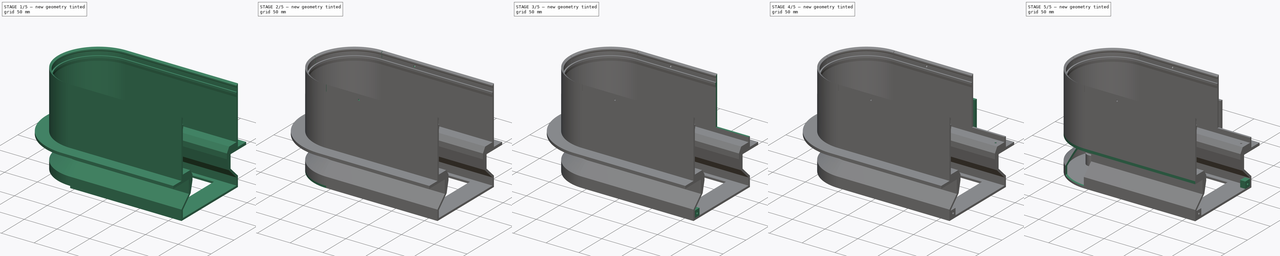
[diagram: build sequence overview — one tinted view per stage of 5, left to right]
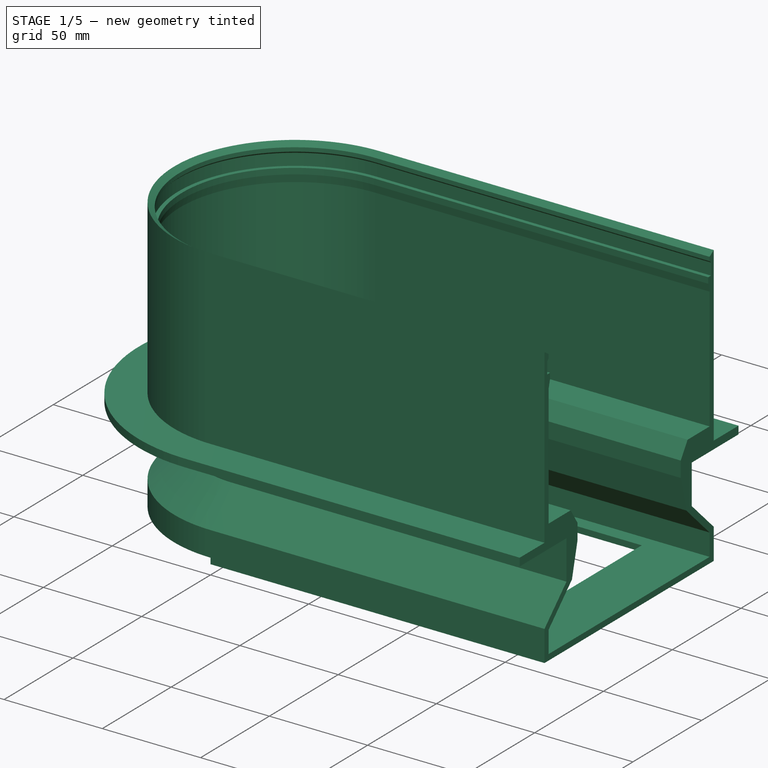
[diagram: stage 1 of 5 — iso view after this stage's code; geometry added in this stage tinted green]
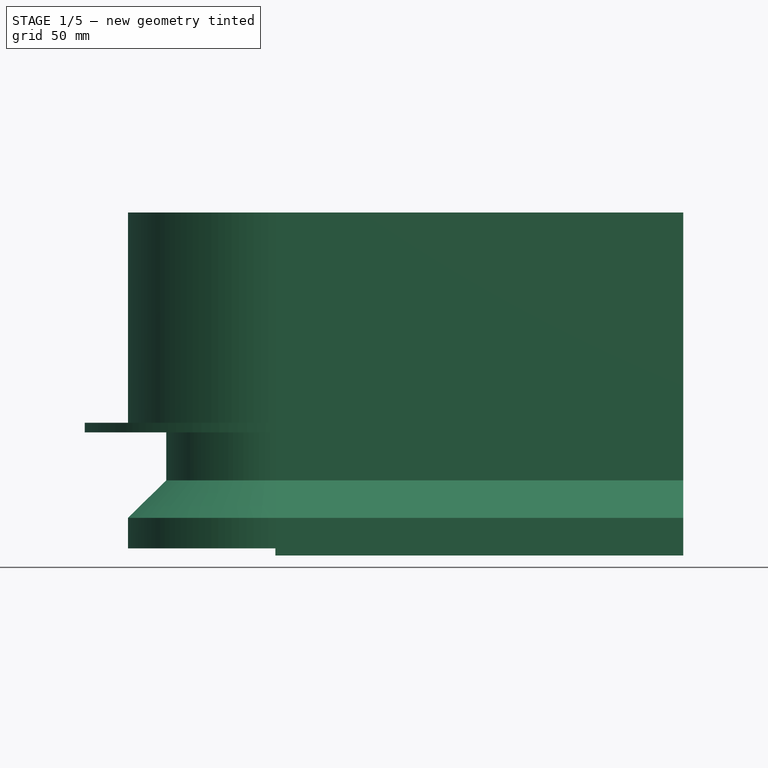
[diagram: stage 1 of 5 — front view after this stage's code; geometry added in this stage tinted green]
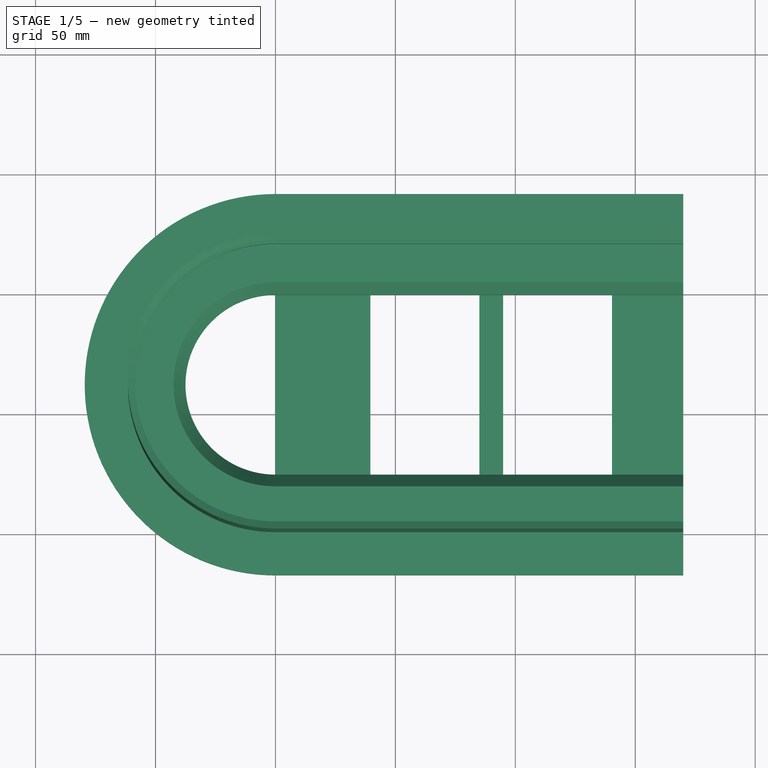
[diagram: stage 1 of 5 — top view after this stage's code; geometry added in this stage tinted green]
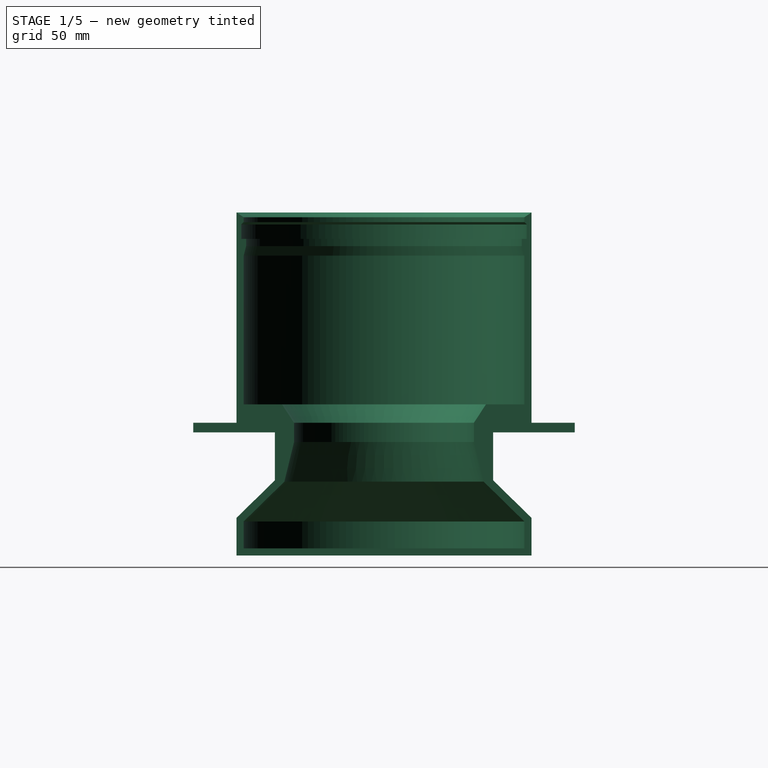
[diagram: stage 1 of 5 — right view after this stage's code; geometry added in this stage tinted green]
FCSTD DOCUMENT  (FreeCAD 1.0R39109 (Git))
Label: Base Layer - Power Side - Wall
License: All rights reserved
LicenseURL: http://en.wikipedia.org/wiki/All_rights_reserved
objects: Sketcher::SketchObject×19, PartDesign::Pocket×12, PartDesign::Pad×7, PartDesign::Plane×6, PartDesign::Mirrored×2, App::Link×1, PartDesign::ShapeBinder×1, PartDesign::Line×1, PartDesign::Revolution×1, App::Part×1, PartDesign::Body×1, Part::Scale×1
note: 112 computed .brp shape members not serialized (recipe doc carries the construction recipe); baked Part::Feature solids carry a one-line shape summary decoded from their .brp
EXTERNAL_REF file=../Master Document.FCStd obj=Spreadsheet

FEATURE [App::Link] Link  label="Monitor Chassis Parameters"
  LinkPlacement = pos=(0,-59,0) rot=(0,0,1;0rad)
  LinkedObject = -> <external ../Master Document.FCStd>#Spreadsheet
  Placement = pos=(0,-59,0) rot=(0,0,1;0rad)
FEATURE [Sketcher::SketchObject] Sketch
  ArcFitTolerance = 1e-06
  AttachmentSupport = -> [XY_Plane001]
  FullyConstrained = true
  MakeInternals = false
  MapMode = 5
  expr: Constraints[10] = <<Monitor Chassis Parameters>>.GSWallHalfLength
  expr: Constraints[28] = <<Monitor Chassis Parameters>>.GSBaseFloorBeamWidth
  expr: Constraints[29] = <<Monitor Chassis Parameters>>.GSBaseFloorBeamWidth
  expr: Constraints[31] = 3 * <<Monitor Chassis Parameters>>.GSBaseFloorBeamWidth
  expr: Constraints[32] = <<Monitor Chassis Parameters>>.GSBaseFloorBeamWidth
  expr: Constraints[33] = 4 * <<Monitor Chassis Parameters>>.GSBaseFloorBeamWidth
  expr: Constraints[34] = 0.5 * <<Monitor Chassis Parameters>>.GSWallHalfLength
  expr: Constraints[9] = <<Monitor Chassis Parameters>>.GSWallWidth
  sketch-geometry (12):
    g0: LineSegment StartX=0 StartY=0 StartZ=0 EndX=170 EndY=0 EndZ=0
    g1: LineSegment StartX=170 StartY=0 StartZ=0 EndX=170 EndY=123 EndZ=0
    g2: LineSegment StartX=170 StartY=123 StartZ=0 EndX=0 EndY=123 EndZ=0
    g3: LineSegment StartX=0 StartY=123 StartZ=0 EndX=0 EndY=0 EndZ=0
    g4: LineSegment StartX=39.6 StartY=113.1 StartZ=0 EndX=39.6 EndY=9.9 EndZ=0
    g5: LineSegment StartX=39.6 StartY=9.9 StartZ=0 EndX=85 EndY=9.9 EndZ=0
    g6: LineSegment StartX=85 StartY=9.9 StartZ=0 EndX=85 EndY=113.1 EndZ=0
    g7: LineSegment StartX=85 StartY=113.1 StartZ=0 EndX=39.6 EndY=113.1 EndZ=0
    g8: LineSegment StartX=94.9 StartY=113.1 StartZ=0 EndX=94.9 EndY=9.9 EndZ=0
    g9: LineSegment StartX=94.9 StartY=9.9 StartZ=0 EndX=140.3 EndY=9.9 EndZ=0
    g10: LineSegment StartX=140.3 StartY=9.9 StartZ=0 EndX=140.3 EndY=113.1 EndZ=0
    g11: LineSegment StartX=140.3 StartY=113.1 StartZ=0 EndX=94.9 EndY=113.1 EndZ=0
  constraints (35):
    c: Coincident(g0,g1)
    c: Coincident(g1,g2)
    c: Coincident(g2,g3)
    c: Coincident(g3,g0)
    c: Horizontal(g0)
    c: Horizontal(g2)
    c: Vertical(g1)
    c: Vertical(g3)
    c: Coincident(g0,g-1)
    c: DistanceY(g0,g2) = 123
    c: DistanceX(g1) = 170
    c: Coincident(g4,g5)
    c: Coincident(g5,g6)
    c: Coincident(g6,g7)
    c: Coincident(g7,g4)
    c: Vertical(g4)
    c: Vertical(g6)
    c: Horizontal(g5)
    c: Horizontal(g7)
    c: Coincident(g8,g9)
    c: Coincident(g9,g10)
    c: Coincident(g10,g11)
    c: Coincident(g11,g8)
    c: Vertical(g8)
    c: Vertical(g10)
    c: Horizontal(g9)
    c: Horizontal(g11)
    c: Horizontal(g8,g4)
    c: DistanceY(g0,g4) = 9.9
    c: DistanceY(g4,g2) = 9.9
    c: Horizontal(g4,g8)
    c: DistanceX(g9,g0) = 29.7
    c: DistanceX(g5,g8) = 9.9
    c: DistanceX(g0,g4) = 39.6
    c: DistanceX(g0,g5) = 85
FEATURE [PartDesign::Pad] Pad  label="Base Floor Pad"
  Direction = (0,0,1)
  Length = 3
  Length2 = 10
  Profile = -> Sketch
  ReferenceAxis = -> Sketch [N_Axis]
  Suppressed = false
  Type = 0
  expr: Length = <<Monitor Chassis Parameters>>.GSBaseBodyThickness
FEATURE [Sketcher::SketchObject] Sketch001  label="Side Wall Sketch"
  ArcFitTolerance = 0
  AttachmentSupport = -> [Pad]
  ExternalGeometry = -> [Pad]
  FullyConstrained = true
  MakeInternals = false
  MapMode = 5
  Placement = pos=(0,0,0) rot=(0.57735,-0.57735,-0.57735;2.0944rad)
  expr: Constraints[21] = 2
  expr: Constraints[22] = <<Monitor Chassis Parameters>>.GSCamWallClickIndent
  expr: Constraints[27] = <<Monitor Chassis Parameters>>.GSCamWallClickLength
  expr: Constraints[31] = <<Monitor Chassis Parameters>>.GSMonitorFloorOffsetFromBottom
  expr: Constraints[37] = <<Monitor Chassis Parameters>>.GSLEDLightWidth
  expr: Constraints[45] = <<Monitor Chassis Parameters>>.GSLEDLightOverhang
  expr: Constraints[48] = <<Monitor Chassis Parameters>>.GSThinWallThickness
  expr: Constraints[49] = <<Monitor Chassis Parameters>>.GSCamWallThickness
  expr: Constraints[4] = <<Monitor Chassis Parameters>>.GSCamWallThickness - 1
  expr: Constraints[50] = <<Monitor Chassis Parameters>>.GSBaseBodyThickness
  expr: Constraints[5] = <<Monitor Chassis Parameters>>.GSBottomWallHeight
  sketch-geometry (24):
    g0: LineSegment StartX=-3 StartY=139 StartZ=0 EndX=-2 EndY=138 EndZ=0
    g1: LineSegment StartX=-2 StartY=138 StartZ=0 EndX=-2 EndY=132 EndZ=0
    g2: LineSegment StartX=-2 StartY=132 StartZ=0 EndX=-4 EndY=132 EndZ=0
    g3: LineSegment StartX=-3 StartY=3 StartZ=0 EndX=0 EndY=3 EndZ=0
    g4: GeomPoint [constr] X=-3 Y=125 Z=0
    g5: GeomPoint [constr] X=-4 Y=129 Z=0
    g6: LineSegment StartX=-4 StartY=132 StartZ=0 EndX=-4 EndY=129 EndZ=0
    g7: LineSegment StartX=-4 StartY=129 StartZ=0 EndX=-3 EndY=125 EndZ=0
    g8: LineSegment StartX=-2e-16 StartY=143 StartZ=0 EndX=-3 EndY=141 EndZ=0
    g9: LineSegment StartX=-3 StartY=139 StartZ=0 EndX=-3 EndY=141 EndZ=0
    g10: LineSegment StartX=-3 StartY=125 StartZ=0 EndX=-3 EndY=63 EndZ=0
    g11: LineSegment StartX=-3 StartY=14.2 StartZ=0 EndX=-3 EndY=3 EndZ=0
    g12: LineSegment StartX=-3 StartY=63 StartZ=0 EndX=-19 EndY=63 EndZ=0
    g13: LineSegment StartX=-19.9668 StartY=30.8154 StartZ=0 EndX=-3 EndY=14.2 EndZ=0
    g14: LineSegment StartX=0 StartY=3 StartZ=0 EndX=0 EndY=15.7 EndZ=0
    g15: LineSegment StartX=18 StartY=51.33 StartZ=0 EndX=-16 EndY=51.33 EndZ=0
    g16: LineSegment StartX=-16 StartY=51.33 StartZ=0 EndX=-16 EndY=31.33 EndZ=0
    g17: LineSegment StartX=-16 StartY=31.33 StartZ=0 EndX=0 EndY=15.7 EndZ=0
    g18: LineSegment StartX=-2e-16 StartY=55.33 StartZ=0 EndX=-2e-16 EndY=143 EndZ=0
    g19: LineSegment StartX=18 StartY=51.33 StartZ=0 EndX=18 EndY=55.33 EndZ=0
    g20: LineSegment StartX=18 StartY=55.33 StartZ=0 EndX=0 EndY=55.33 EndZ=0
    g21: LineSegment StartX=-19 StartY=63 StartZ=0 EndX=-24 EndY=55.33 EndZ=0
    g22: LineSegment StartX=-24 StartY=55.33 StartZ=0 EndX=-24 EndY=47.33 EndZ=0
    g23: LineSegment StartX=-24 StartY=47.33 StartZ=0 EndX=-19.9668 EndY=30.8154 EndZ=0
  constraints (67):
    c: Coincident(g0,g1)
    c: Coincident(g1,g2)
    c: Coincident(g3,g14)
    c: Horizontal(g14,g3)
    c: DistanceX(g3,g14) = 3
    c: DistanceY(g14,g18) = 140
    c: Vertical(g0,g1)
    c: Coincident(g6,g2)
    c: Coincident(g6,g5)
    c: Coincident(g10,g4)
    c: Coincident(g11,g3)
    c: Coincident(g7,g6)
    c: Coincident(g7,g10)
    c: DistanceY(g10,g6) = 4
    c: DistanceX(g6,g10) = 1
    c: Vertical(g6)
    c: Coincident(g8,g18)
    c: Coincident(g9,g0)
    c: Coincident(g9,g8)
    c: DistanceY(g6,g2) = 3
    c: Horizontal(g2,g1)
    c: DistanceX(g2,g1) = 2
    c: DistanceX(g0,g0) = 1
    c: DistanceY(g0,g0) = 1
    c: Vertical(g9)
    c: DistanceY(g8,g18) = 2
    c: DistanceY(g0,g8) = 2
    c: DistanceY(g1,g0) = 6
    c: Vertical(g11)
    c: Vertical(g11,g10)
    c: Coincident(g13,g11)
    c: DistanceY(g3,g10) = 60
    c: Vertical(g14)
    c: Coincident(g16,g15)
    c: Vertical(g16)
    c: Coincident(g17,g16)
    c: Coincident(g17,g14)
    c: DistanceY(g16,g15) = 20
    c: Horizontal(g12,g10)
    c: Vertical(g19)
    c: Coincident(g12,g10)
    c: Coincident(g19,g20)
    c: Coincident(g18,g20)
    c: Coincident(g15,g19)
    c: Horizontal(g15,g15)
    c: DistanceX(g18,g19) = 18
    c: Vertical(g18,g8)
    c: Horizontal(g18,g19)
    c: DistanceX(g10,g18) = 3
    c: DistanceY(g15,g19) = 4
    c: DistanceX(g12,g15) = 3
    c: Distance(g13,g16) = 4
    c: DistanceY(g11,g14) = 1.5
    c: DistanceX(g15,g15) = 34
    c: DistanceY(g14,g16) = 15.63
    c: DistanceY(g3,g14) = 12.7
    c: Vertical(g10)
    c: Coincident(g3,g-4)
    c: Coincident(g21,g12)
    c: Coincident(g22,g21)
    c: Vertical(g22)
    c: Coincident(g23,g22)
    c: Coincident(g23,g13)
    c: DistanceX(g21,g12) = 5
    c: Horizontal(g21,g18)
    c: DistanceY(g22,g21) = 8
    c: Distance(g22,g13) = 17
FEATURE [PartDesign::Pad] Pad001  label="Side Wall Pad"
  BaseFeature = -> Pad
  Direction = (-1,0,0)
  Length = 170
  Length2 = 10
  Profile = -> Sketch001
  ReferenceAxis = -> Sketch001 [N_Axis]
  Reversed = true
  Suppressed = false
  Type = 0
  expr: Length = <<Monitor Chassis Parameters>>.GSWallHalfLength
FEATURE [PartDesign::ShapeBinder] CopyYZ_Plane
  Placement = pos=(0,0,0) rot=(0.57735,0.57735,0.57735;2.0944rad)
  TraceSupport = false
FEATURE [PartDesign::Line] DatumLine
  AttacherType = Attacher::AttachEngineLine
  AttachmentOffset = pos=(0,0,61.5) rot=(0,1,0;1.5708rad)
  AttachmentSupport = -> [CopyYZ_Plane]
  Length = 20
  MapMode = 16
  Placement = pos=(0,61.5,0) rot=(0,0,1;4.71239rad)
  ResizeMode = 0
  expr: .AttachmentOffset.Base.z = 0.5 * <<Monitor Chassis Parameters>>.GSWallWidth
FEATURE [PartDesign::Revolution] Revolution  label="Sidel Wall Revolution"
  Angle = 180
  Angle2 = 60
  Axis = (0,0,1)
  Base = (0,61.5,0)
  BaseFeature = -> Pad001
  Profile = -> Sketch001
  ReferenceAxis = -> DatumLine
  Reversed = true
  Suppressed = false
  Type = 0
FEATURE [PartDesign::Plane] DatumPlane
  AttachmentSupport = -> [Origin]
  Length = 60
  ResizeMode = 0
  Width = 60
FEATURE [PartDesign::Plane] DatumPlane001
  AttachmentOffset = pos=(0,0,-61.5) rot=(0,0,1;0rad)
  AttachmentSupport = -> [XZ_Plane001]
  Length = 309.48
  MapMode = 5
  Placement = pos=(0,61.5,-1.37e-14) rot=(1,0,0;1.5708rad)
  ResizeMode = 0
  Width = 210.367
  expr: .AttachmentOffset.Base.z = -0.5 * <<Monitor Chassis Parameters>>.GSWallWidth
FEATURE [PartDesign::Mirrored] Mirrored  label="Side Wall Mirror"
  BaseFeature = -> Revolution
  MirrorPlane = -> DatumPlane001
  Originals = -> [Pad001]
  Suppressed = false
  TransformMode = 0
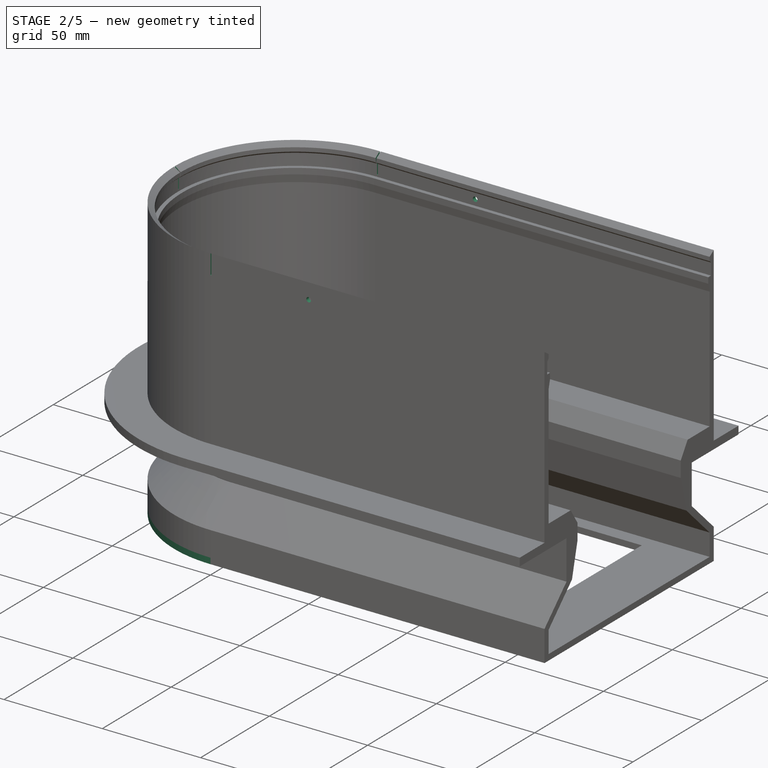
[diagram: stage 2 of 5 — iso view after this stage's code; geometry added in this stage tinted green]
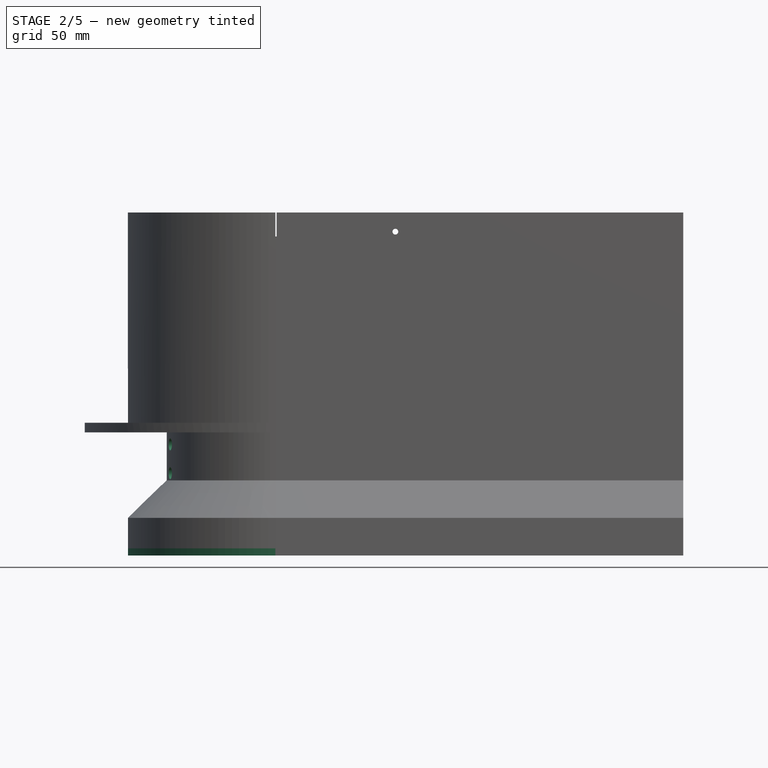
[diagram: stage 2 of 5 — front view after this stage's code; geometry added in this stage tinted green]
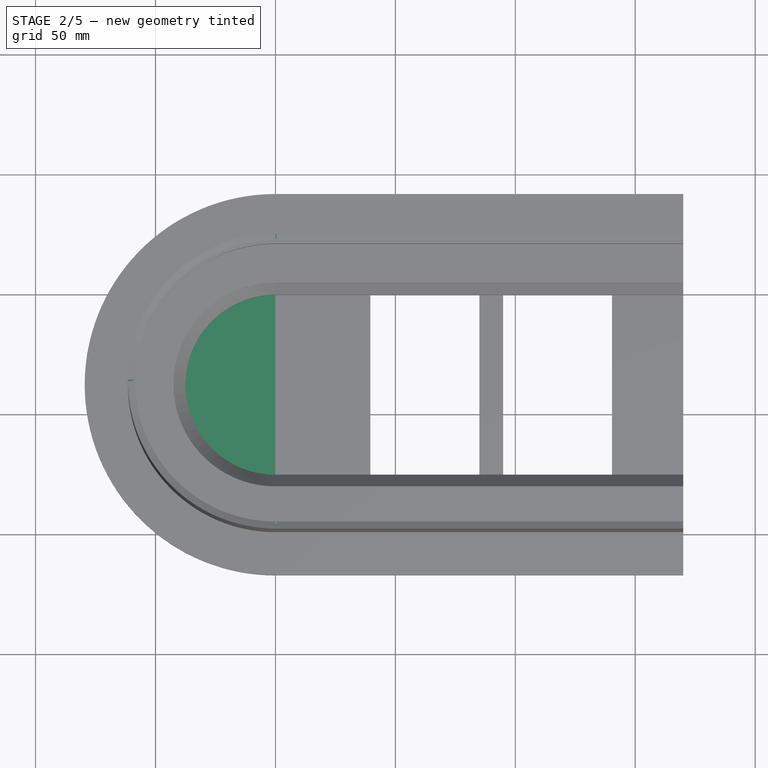
[diagram: stage 2 of 5 — top view after this stage's code; geometry added in this stage tinted green]
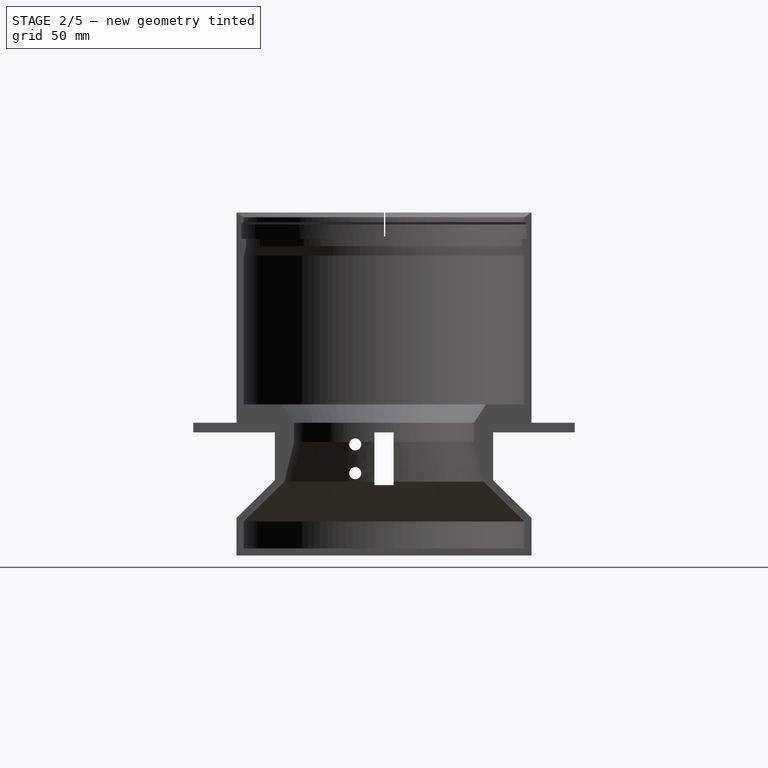
[diagram: stage 2 of 5 — right view after this stage's code; geometry added in this stage tinted green]
FEATURE [Sketcher::SketchObject] Sketch002
  ArcFitTolerance = 1e-06
  AttachmentSupport = -> [XY_Plane001]
  FullyConstrained = true
  MakeInternals = false
  MapMode = 5
  expr: Constraints[1] = <<Monitor Chassis Parameters>>.GSWallWidth
  sketch-geometry (2):
    g0: ArcOfCircle CenterX=-4.52e-14 CenterY=61.5 CenterZ=0 NormalX=0 NormalY=0 NormalZ=1 AngleXU=0 Radius=61.5 StartAngle=1.5708 EndAngle=4.71239
    g1: LineSegment StartX=4.092e-13 StartY=123 StartZ=0 EndX=-4.52e-14 EndY=0 EndZ=0
  constraints (6):
    c: PointOnObject(g0,g-2)
    c: DistanceY(g0,g0) = 123
    c: Coincident(g1,g0)
    c: Coincident(g1,g0)
    c: Coincident(g0,g-1)
    c: Vertical(g0,g0)
FEATURE [PartDesign::Pad] Pad002  label="End Round Bottom Pad"
  BaseFeature = -> Mirrored
  Direction = (0,0,1)
  Length = 3
  Length2 = 10
  Profile = -> Sketch002
  ReferenceAxis = -> Sketch002 [N_Axis]
  Suppressed = false
  Type = 0
  expr: Length = <<Monitor Chassis Parameters>>.GSBaseBodyThickness
FEATURE [Sketcher::SketchObject] Sketch004
  ArcFitTolerance = 1e-06
  AttachmentSupport = -> [XZ_Plane001]
  FullyConstrained = true
  MakeInternals = false
  MapMode = 5
  Placement = pos=(0,0,0) rot=(1,0,0;1.5708rad)
  expr: Constraints[10] = <<Monitor Chassis Parameters>>.GSBottomWallHeight + <<Monitor Chassis Parameters>>.GSBaseBodyThickness
  expr: Constraints[11] = <<Monitor Chassis Parameters>>.GSMonitorWallTensionReliefCutWidth
  sketch-geometry (4):
    g0: LineSegment StartX=0 StartY=143 StartZ=0 EndX=0 EndY=133 EndZ=0
    g1: LineSegment StartX=0 StartY=133 StartZ=0 EndX=0.5 EndY=133 EndZ=0
    g2: LineSegment StartX=0.5 StartY=133 StartZ=0 EndX=0.5 EndY=143 EndZ=0
    g3: LineSegment StartX=0.5 StartY=143 StartZ=0 EndX=0 EndY=143 EndZ=0
  constraints (12):
    c: Coincident(g0,g1)
    c: Coincident(g1,g2)
    c: Coincident(g2,g3)
    c: Coincident(g3,g0)
    c: Vertical(g0)
    c: Vertical(g2)
    c: Horizontal(g1)
    c: Horizontal(g3)
    c: DistanceY(g0,g0) = 10
    c: Vertical(g0,g-1)
    c: DistanceY(g-1,g0) = 143
    c: DistanceX(g0,g1) = 0.5
FEATURE [PartDesign::Pocket] Pocket  label="Tension Relief Side Pocket"
  BaseFeature = -> Pad002
  Direction = (0,1,-2e-16)
  Length = 5
  Length2 = 5
  Profile = -> Sketch004
  ReferenceAxis = -> Sketch004 [N_Axis]
  Suppressed = false
  Type = 1
FEATURE [Sketcher::SketchObject] Sketch005
  ArcFitTolerance = 1e-06
  AttachmentSupport = -> [YZ_Plane001]
  FullyConstrained = true
  MakeInternals = false
  MapMode = 5
  Placement = pos=(0,0,0) rot=(0.57735,0.57735,0.57735;2.0944rad)
  expr: Constraints[10] = <<Monitor Chassis Parameters>>.GSMonitorWallTensionReliefCutWidth
  expr: Constraints[11] = 0.5 * <<Monitor Chassis Parameters>>.GSWallWidth
  expr: Constraints[8] = <<Monitor Chassis Parameters>>.GSBottomWallHeight + <<Monitor Chassis Parameters>>.GSBaseBodyThickness
  sketch-geometry (4):
    g0: LineSegment StartX=61.5 StartY=143 StartZ=0 EndX=61.5 EndY=133 EndZ=0
    g1: LineSegment StartX=61.5 StartY=133 StartZ=0 EndX=62 EndY=133 EndZ=0
    g2: LineSegment StartX=62 StartY=133 StartZ=0 EndX=62 EndY=143 EndZ=0
    g3: LineSegment StartX=62 StartY=143 StartZ=0 EndX=61.5 EndY=143 EndZ=0
  constraints (12):
    c: Coincident(g0,g1)
    c: Coincident(g1,g2)
    c: Coincident(g2,g3)
    c: Coincident(g3,g0)
    c: Vertical(g0)
    c: Vertical(g2)
    c: Horizontal(g1)
    c: Horizontal(g3)
    c: DistanceY(g-1,g0) = 143
    c: DistanceY(g0,g0) = 10
    c: DistanceX(g0,g1) = 0.5
    c: DistanceX(g-1,g0) = 61.5
FEATURE [PartDesign::Pocket] Pocket001  label="Tension Curve Cuts Pocket"
  BaseFeature = -> Pocket
  Direction = (-1,0,0)
  Length = 5
  Length2 = 5
  Profile = -> Sketch005
  ReferenceAxis = -> Sketch005 [N_Axis]
  Suppressed = false
  Type = 1
FEATURE [Sketcher::SketchObject] Sketch006
  ArcFitTolerance = 1e-06
  AttachmentSupport = -> [YZ_Plane001]
  ExternalGeometry = -> [Pocket001]
  FullyConstrained = true
  MakeInternals = false
  MapMode = 5
  Placement = pos=(0,0,0) rot=(0.57735,0.57735,0.57735;2.0944rad)
  expr: Constraints[0] = <<Monitor Chassis Parameters>>.GSMonitorLargeZipTieHoleParameter
  expr: Constraints[10] = 1.1 * <<Monitor Chassis Parameters>>.GSLEDLightWidth
  expr: Constraints[11] = <<Monitor Chassis Parameters>>.GSLEDSideCutWidth
  expr: Constraints[13] = <<Monitor Chassis Parameters>>.GSLEDSideCutWidth
  expr: Constraints[14] = 0.5 * <<Monitor Chassis Parameters>>.GSWallWidth + <<Monitor Chassis Parameters>>.GSLEDSideCutWidth / 2
  sketch-geometry (6):
    g0: Circle CenterX=49.5 CenterY=34.33 CenterZ=0 NormalX=0 NormalY=0 NormalZ=1 AngleXU=0 Radius=2.5
    g1: Circle CenterX=49.5 CenterY=46.33 CenterZ=0 NormalX=0 NormalY=0 NormalZ=1 AngleXU=0 Radius=2.5
    g2: LineSegment StartX=57.5 StartY=51.33 StartZ=0 EndX=57.5 EndY=29.33 EndZ=0
    g3: LineSegment StartX=57.5 StartY=29.33 StartZ=0 EndX=65.5 EndY=29.33 EndZ=0
    g4: LineSegment StartX=65.5 StartY=29.33 StartZ=0 EndX=65.5 EndY=51.33 EndZ=0
    g5: LineSegment StartX=65.5 StartY=51.33 StartZ=0 EndX=57.5 EndY=51.33 EndZ=0
  constraints (18):
    c: Diameter(g0) = 5
    c: Diameter(g1) = 5
    c: Coincident(g2,g3)
    c: Coincident(g3,g4)
    c: Coincident(g4,g5)
    c: Coincident(g5,g2)
    c: Vertical(g2)
    c: Vertical(g4)
    c: Horizontal(g3)
    c: Horizontal(g5)
    c: DistanceY(g3,g4) = 22
    c: DistanceX(g2,g4) = 8
    c: Vertical(g1,g0)
    c: DistanceX(g1,g2) = 8
    c: DistanceX(g-1,g4) = 65.5
    c: Horizontal(g-3,g2)
    c: DistanceY(g1,g2) = 5
    c: DistanceY(g2,g0) = 5
FEATURE [PartDesign::Pocket] Pocket002  label="LED and Zip Tie Holes"
  BaseFeature = -> Pocket001
  Direction = (-1,0,0)
  Length = 5
  Length2 = 5
  Profile = -> Sketch006
  ReferenceAxis = -> Sketch006 [N_Axis]
  Suppressed = false
  Type = 1
FEATURE [Sketcher::SketchObject] Sketch007
  ArcFitTolerance = 1e-06
  AttachmentSupport = -> [XZ_Plane001]
  FullyConstrained = true
  MakeInternals = false
  MapMode = 5
  Placement = pos=(0,0,0) rot=(1,0,0;1.5708rad)
  expr: Constraints[0] = <<Monitor Chassis Parameters>>.GSWallHalfLength - <<Monitor Chassis Parameters>>.GsMonitorInterFloorJoinScrewOffsetFromCenter
  expr: Constraints[1] = <<Monitor Chassis Parameters>>.GSM3TappingScrewHoleDiameter
  expr: Constraints[2] = <<Monitor Chassis Parameters>>.GSBottomWallHeight - 5
  sketch-geometry (1):
    g0: Circle CenterX=50 CenterY=135 CenterZ=0 NormalX=0 NormalY=0 NormalZ=1 AngleXU=0 Radius=1.2
  constraints (3):
    c: DistanceX(g-1,g0) = 50
    c: Diameter(g0) = 2.4
    c: DistanceY(g-1,g0) = 135
FEATURE [PartDesign::Pocket] Pocket003  label="Inter-Layer Connect Screw Holes"
  BaseFeature = -> Pocket002
  Direction = (0,1,-2e-16)
  Length = 5
  Length2 = 5
  Profile = -> Sketch007
  ReferenceAxis = -> Sketch007 [N_Axis]
  Suppressed = false
  Type = 1
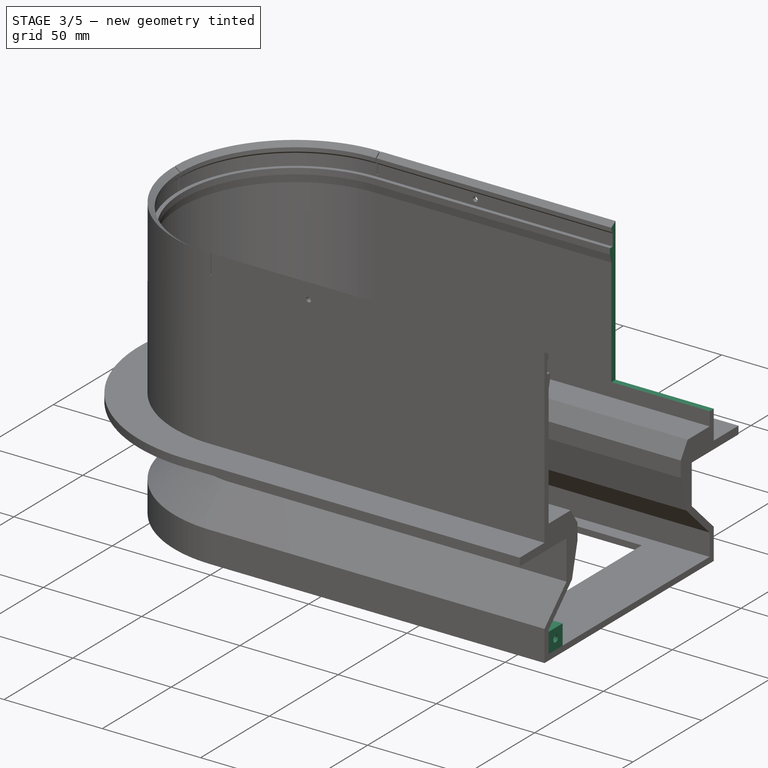
[diagram: stage 3 of 5 — iso view after this stage's code; geometry added in this stage tinted green]
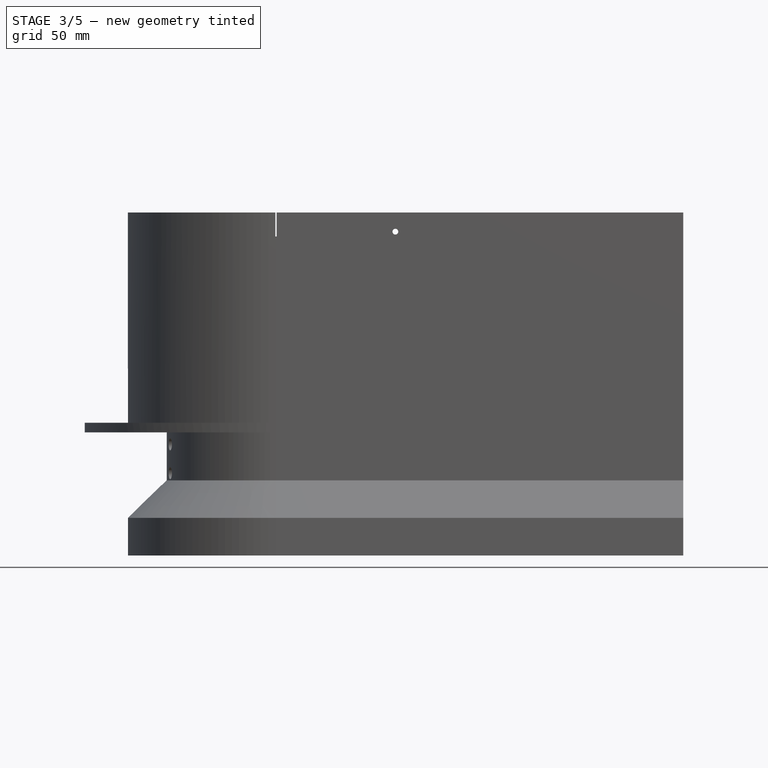
[diagram: stage 3 of 5 — front view after this stage's code; geometry added in this stage tinted green]
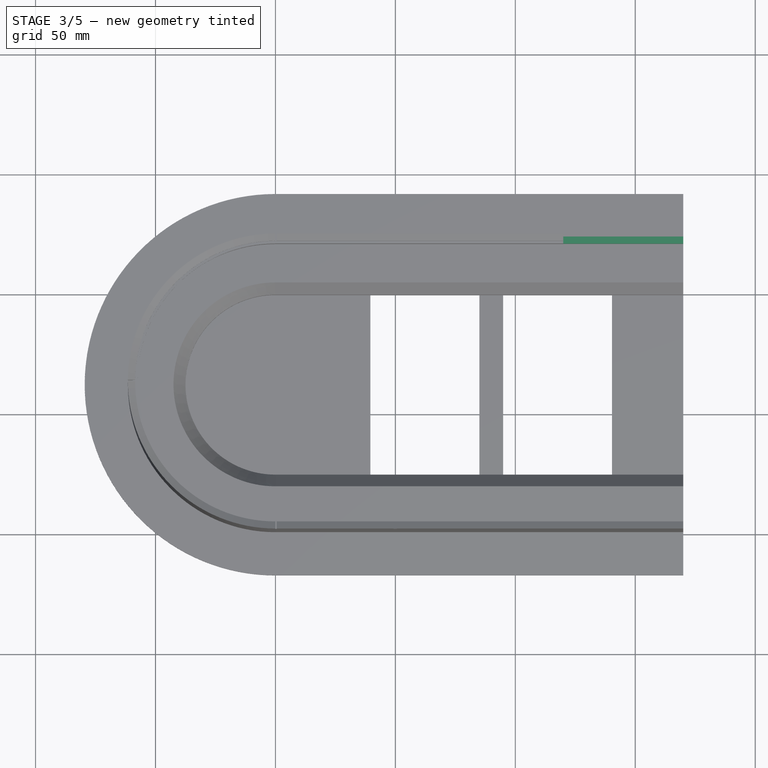
[diagram: stage 3 of 5 — top view after this stage's code; geometry added in this stage tinted green]
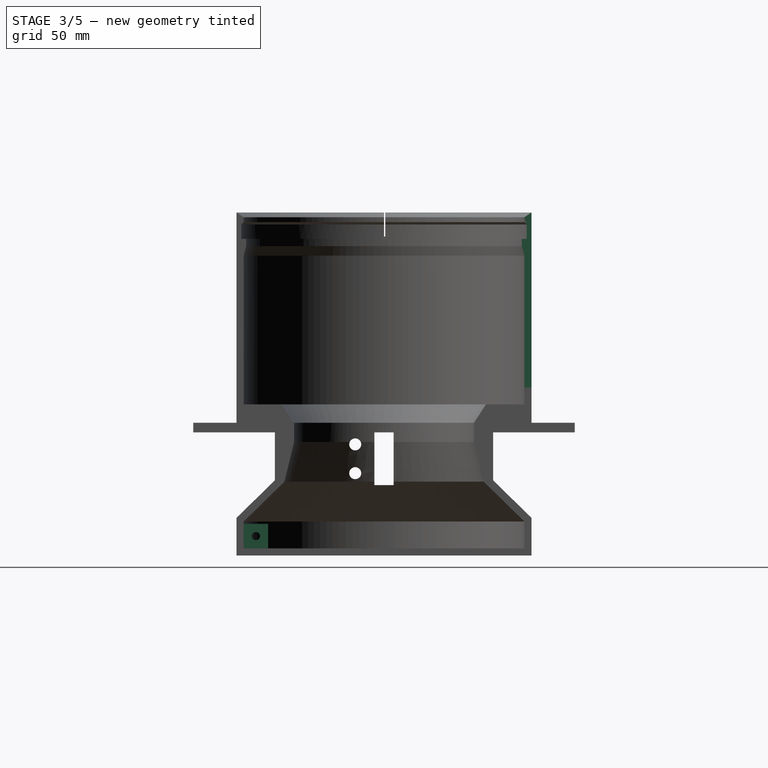
[diagram: stage 3 of 5 — right view after this stage's code; geometry added in this stage tinted green]
FEATURE [PartDesign::Plane] DatumPlane002  label="Far Wall DatumPlane002"
  AttachmentOffset = pos=(0,0,-123) rot=(0,0,1;0rad)
  AttachmentSupport = -> [XZ_Plane001]
  Length = 309.48
  MapMode = 5
  Placement = pos=(0,123,-2.73e-14) rot=(1,0,0;1.5708rad)
  ResizeMode = 0
  Width = 210.367
  expr: .AttachmentOffset.Base.z = -<<Monitor Chassis Parameters>>.GSWallWidth
FEATURE [Sketcher::SketchObject] Sketch009
  ArcFitTolerance = 1e-06
  AttachmentSupport = -> [DatumPlane002]
  FullyConstrained = true
  MakeInternals = false
  MapMode = 5
  Placement = pos=(0,123,-2.73e-14) rot=(1,0,0;1.5708rad)
  expr: Constraints[10] = <<Monitor Chassis Parameters>>.GSMonitorViewPortLengthLeft
  expr: Constraints[11] = <<Monitor Chassis Parameters>>.GSBottomWallHeight + <<Monitor Chassis Parameters>>.GSBaseBodyThickness
  expr: Constraints[8] = <<Monitor Chassis Parameters>>.GsMonitorPiAccessPortOffsetFromBase
  expr: Constraints[9] = <<Monitor Chassis Parameters>>.GSWallHalfLength
  sketch-geometry (4):
    g0: LineSegment StartX=120 StartY=70 StartZ=0 EndX=170 EndY=70 EndZ=0
    g1: LineSegment StartX=170 StartY=70 StartZ=0 EndX=170 EndY=143 EndZ=0
    g2: LineSegment StartX=170 StartY=143 StartZ=0 EndX=120 EndY=143 EndZ=0
    g3: LineSegment StartX=120 StartY=143 StartZ=0 EndX=120 EndY=70 EndZ=0
  constraints (12):
    c: Coincident(g0,g1)
    c: Coincident(g1,g2)
    c: Coincident(g2,g3)
    c: Coincident(g3,g0)
    c: Horizontal(g0)
    c: Horizontal(g2)
    c: Vertical(g1)
    c: Vertical(g3)
    c: DistanceY(g-1,g0) = 70
    c: DistanceX(g-1,g0) = 170
    c: DistanceX(g2,g1) = 50
    c: DistanceY(g-1,g1) = 143
FEATURE [PartDesign::Pocket] Pocket005  label="Camera 2 Viewport Right Pocket"
  BaseFeature = -> Pocket003
  Direction = (0,1,-2e-16)
  Length = 5
  Length2 = 5
  Profile = -> Sketch009
  ReferenceAxis = -> Sketch009 [N_Axis]
  Reversed = true
  Suppressed = false
  Type = 0
FEATURE [PartDesign::Plane] DatumPlane003  label="Half Join DatumPlane003"
  AttachmentOffset = pos=(0,0,170) rot=(0,0,1;0rad)
  AttachmentSupport = -> [YZ_Plane001]
  Length = 199.399
  MapMode = 5
  Placement = pos=(170,0,0) rot=(0.57735,0.57735,0.57735;2.0944rad)
  ResizeMode = 0
  Width = 201.399
  expr: .AttachmentOffset.Base.z = <<Monitor Chassis Parameters>>.GSWallHalfLength
FEATURE [Sketcher::SketchObject] Sketch010
  ArcFitTolerance = 1e-06
  AttachmentSupport = -> [DatumPlane003]
  FullyConstrained = true
  MakeInternals = false
  MapMode = 5
  Placement = pos=(170,0,0) rot=(0.57735,0.57735,0.57735;2.0944rad)
  expr: Constraints[10] = <<Monitor Chassis Parameters>>.GSBaseBodyThickness
  expr: Constraints[11] = <<Monitor Chassis Parameters>>.GSBaseBodyThickness
  expr: Constraints[8] = 3 * <<Monitor Chassis Parameters>>.GSM3BoltHoleDiameter
  expr: Constraints[9] = 3 * <<Monitor Chassis Parameters>>.GSM3BoltHoleDiameter
  sketch-geometry (4):
    g0: LineSegment StartX=13.2 StartY=13.2 StartZ=0 EndX=3 EndY=13.2 EndZ=0
    g1: LineSegment StartX=3 StartY=13.2 StartZ=0 EndX=3 EndY=3 EndZ=0
    g2: LineSegment StartX=3 StartY=3 StartZ=0 EndX=13.2 EndY=3 EndZ=0
    g3: LineSegment StartX=13.2 StartY=3 StartZ=0 EndX=13.2 EndY=13.2 EndZ=0
  constraints (12):
    c: Coincident(g0,g1)
    c: Coincident(g1,g2)
    c: Coincident(g2,g3)
    c: Coincident(g3,g0)
    c: Horizontal(g0)
    c: Horizontal(g2)
    c: Vertical(g1)
    c: Vertical(g3)
    c: DistanceX(g0,g0) = 10.2
    c: DistanceY(g2,g0) = 10.2
    c: DistanceY(g-1,g1) = 3
    c: DistanceX(g-1,g1) = 3
FEATURE [PartDesign::Pad] Pad004  label="Half Joining Pad"
  BaseFeature = -> Pocket005
  Direction = (1,0,0)
  Length = 8
  Length2 = 10
  Profile = -> Sketch010
  ReferenceAxis = -> Sketch010 [N_Axis]
  Reversed = true
  Suppressed = false
  Type = 0
  expr: Length = 2 * <<Monitor Chassis Parameters>>.GSCamWallThickness
FEATURE [Sketcher::SketchObject] Sketch011
  ArcFitTolerance = 1e-06
  AttachmentSupport = -> [DatumPlane003]
  FullyConstrained = true
  MakeInternals = false
  MapMode = 5
  Placement = pos=(170,0,0) rot=(0.57735,0.57735,0.57735;2.0944rad)
  expr: Constraints[1] = <<Monitor Chassis Parameters>>.GSBaseBodyThickness + 1.5 * <<Monitor Chassis Parameters>>.GSM3BoltHoleDiameter
  expr: Constraints[2] = <<Monitor Chassis Parameters>>.GSBaseBodyThickness + 1.5 * <<Monitor Chassis Parameters>>.GSM3BoltHoleDiameter
  sketch-geometry (1):
    g0: Circle CenterX=8.1 CenterY=8.1 CenterZ=0 NormalX=0 NormalY=0 NormalZ=1 AngleXU=0 Radius=1.7
  constraints (3):
    c: Diameter(g0) = 3.4
    c: DistanceX(g-1,g0) = 8.1
    c: DistanceY(g-1,g0) = 8.1
FEATURE [PartDesign::Pocket] Pocket006  label="Half-Join Bolt Hole Pocket"
  BaseFeature = -> Pad004
  Direction = (-1,0,0)
  Length = 8
  Length2 = 5
  Profile = -> Sketch011
  ReferenceAxis = -> Sketch011 [N_Axis]
  Suppressed = false
  Type = 0
  expr: Length = 2 * <<Monitor Chassis Parameters>>.GSCamWallThickness
FEATURE [Sketcher::SketchObject] Sketch013
  ArcFitTolerance = 1e-06
  AttachmentSupport = -> [Pocket006]
  ExternalGeometry = -> [Pocket006]
  FullyConstrained = true
  MakeInternals = false
  MapMode = 5
  Placement = pos=(162,0,0) rot=(0.57735,-0.57735,-0.57735;2.0944rad)
  sketch-geometry (7):
    g0: LineSegment StartX=-5.24212 StartY=9.75 StartZ=0 EndX=-8.1 EndY=11.4 EndZ=0
    g1: LineSegment StartX=-8.1 StartY=11.4 StartZ=0 EndX=-10.9579 EndY=9.75 EndZ=0
    g2: LineSegment StartX=-10.9579 StartY=9.75 StartZ=0 EndX=-10.9579 EndY=6.45 EndZ=0
    g3: LineSegment StartX=-10.9579 StartY=6.45 StartZ=0 EndX=-8.1 EndY=4.8 EndZ=0
    g4: LineSegment StartX=-8.1 StartY=4.8 StartZ=0 EndX=-5.24212 EndY=6.45 EndZ=0
    g5: LineSegment StartX=-5.24212 StartY=6.45 StartZ=0 EndX=-5.24212 EndY=9.75 EndZ=0
    g6: Circle [constr] CenterX=-8.1 CenterY=8.1 CenterZ=0 NormalX=0 NormalY=0 NormalZ=1 AngleXU=0 Radius=3.3
  constraints (16):
    c: Coincident(g0,g1)
    c: Coincident(g1,g2)
    c: Coincident(g2,g3)
    c: Coincident(g3,g4)
    c: Coincident(g4,g5)
    c: Coincident(g5,g0)
    c: Equal(g0, g1-g5) x5
    c: PointOnObject(g0,g6)
    c: PointOnObject(g1,g6)
    c: PointOnObject(g2,g6)
    c: PointOnObject(g3,g6)
    c: PointOnObject(g4,g6)
    c: PointOnObject(g5,g6)
    c: Diameter(g6) = 6.6
    c: Horizontal(g1,g0)
    c: Coincident(g-4,g6)
FEATURE [PartDesign::Pocket] Pocket007  label="Half-Join Nut Indent Pocket"
  BaseFeature = -> Pocket006
  Direction = (1,0,0)
  Length = 4.2
  Length2 = 5
  Profile = -> Sketch013
  ReferenceAxis = -> Sketch013 [N_Axis]
  Suppressed = false
  Type = 0
  expr: Length = 1.2 * <<Monitor Chassis Parameters>>.GSCamM3NutDepth
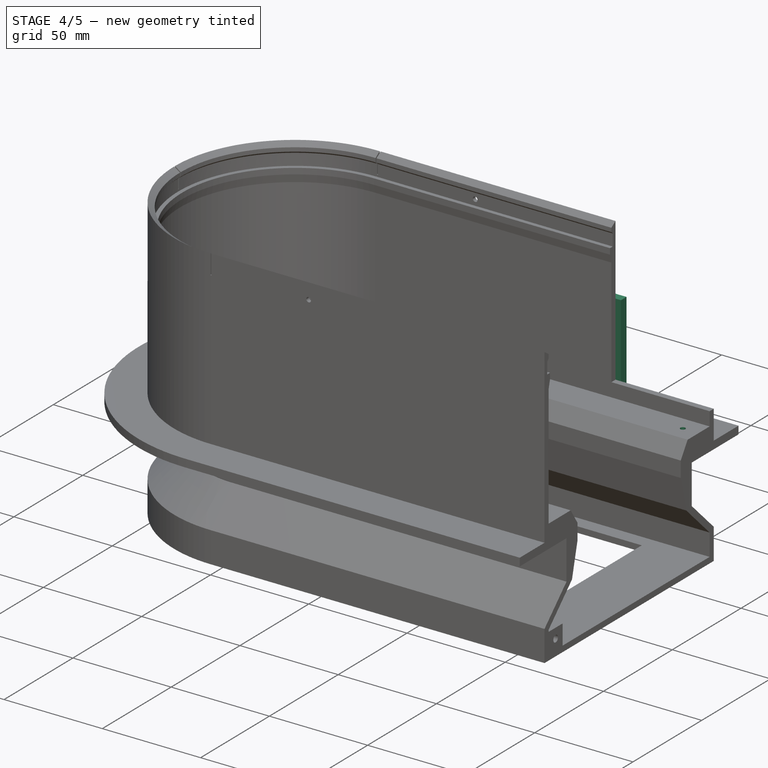
[diagram: stage 4 of 5 — iso view after this stage's code; geometry added in this stage tinted green]
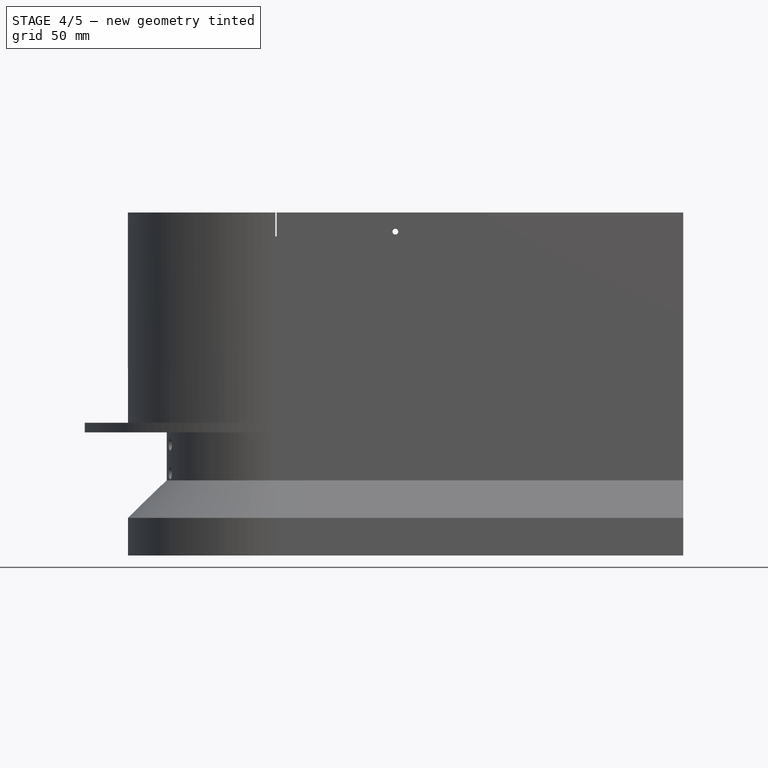
[diagram: stage 4 of 5 — front view after this stage's code; geometry added in this stage tinted green]
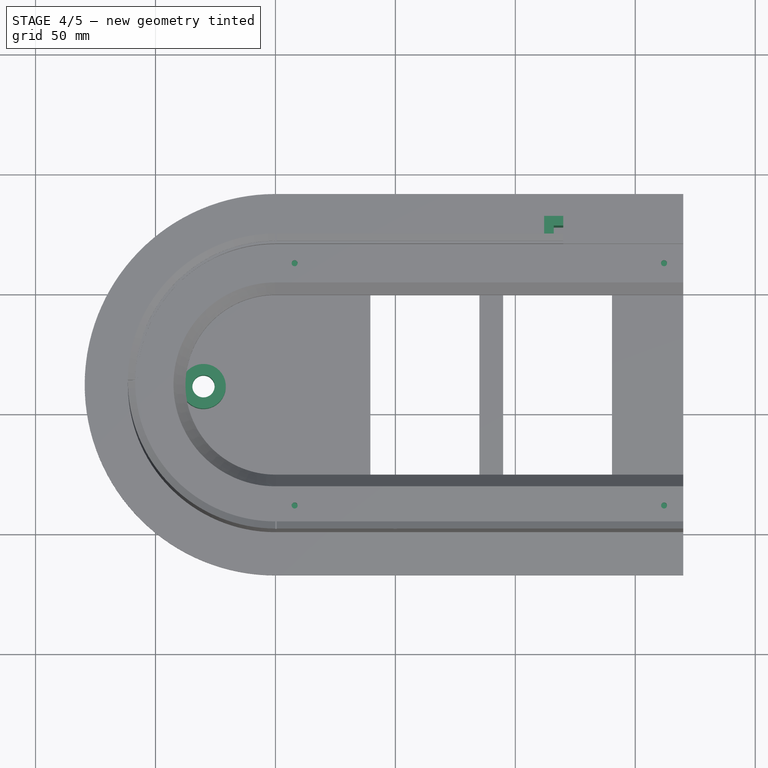
[diagram: stage 4 of 5 — top view after this stage's code; geometry added in this stage tinted green]
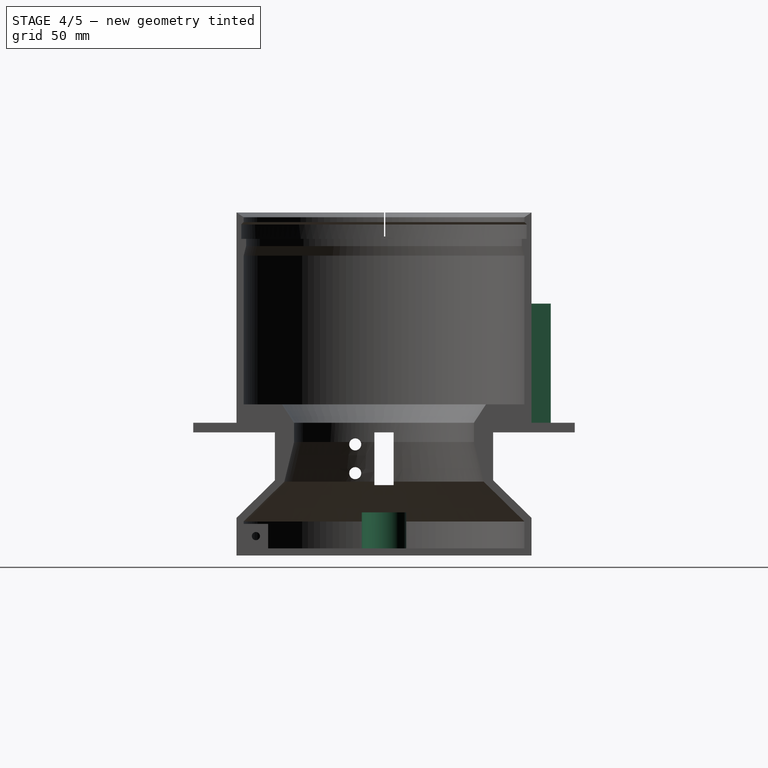
[diagram: stage 4 of 5 — right view after this stage's code; geometry added in this stage tinted green]
FEATURE [Sketcher::SketchObject] Sketch014
  ArcFitTolerance = 1e-06
  AttachmentSupport = -> [Pocket007]
  FullyConstrained = true
  MakeInternals = false
  MapMode = 5
  Placement = pos=(0,0,3) rot=(0,0,1;0rad)
  expr: Constraints[0] = 2 * <<Monitor Chassis Parameters>>.GSMonitorBaseScrewInsertDiameter
  expr: Constraints[1] = <<Monitor Chassis Parameters>>.GSMonitorBaseScrewInsertEdgeToCenterOffset
  expr: Constraints[2] = 0.5 * <<Monitor Chassis Parameters>>.GSWallWidth
  sketch-geometry (1):
    g0: Circle CenterX=-30 CenterY=61.5 CenterZ=0 NormalX=0 NormalY=0 NormalZ=1 AngleXU=0 Radius=9.3
  constraints (3):
    c: Diameter(g0) = 18.6
    c: DistanceX(g0,g-1) = 30
    c: DistanceY(g-1,g0) = 61.5
FEATURE [PartDesign::Pad] Pad005  label="Right Stand Riser Pad"
  BaseFeature = -> Pocket007
  Direction = (0,0,1)
  Length = 15
  Length2 = 10
  Profile = -> Sketch014
  ReferenceAxis = -> Sketch014 [N_Axis]
  Suppressed = false
  Type = 0
  expr: Length = <<Monitor Chassis Parameters>>.GSMonitorBaseScrewInsertRiserHeight
FEATURE [Sketcher::SketchObject] Sketch015
  ArcFitTolerance = 1e-06
  AttachmentSupport = -> [Pad005]
  ExternalGeometry = -> [Pad005]
  FullyConstrained = true
  MakeInternals = false
  MapMode = 5
  Placement = pos=(0,0,18) rot=(0,0,1;0rad)
  expr: Constraints[1] = <<Monitor Chassis Parameters>>.GSMonitorBaseScrewInsertDiameter
  sketch-geometry (1):
    g0: Circle CenterX=-30 CenterY=61.5 CenterZ=0 NormalX=0 NormalY=0 NormalZ=1 AngleXU=0 Radius=4.65
  constraints (2):
    c: Coincident(g0,g-3)
    c: Diameter(g0) = 9.3
FEATURE [PartDesign::Pocket] Pocket008  label="Right Stand Riser Insert Pocket"
  BaseFeature = -> Pad005
  Direction = (0,0,-1)
  Length = 5
  Length2 = 5
  Profile = -> Sketch015
  ReferenceAxis = -> Sketch015 [N_Axis]
  Suppressed = false
  Type = 1
FEATURE [Sketcher::SketchObject] Sketch016
  ArcFitTolerance = 1e-06
  AttachmentSupport = -> [DatumPlane002]
  FullyConstrained = true
  MakeInternals = false
  MapMode = 5
  Placement = pos=(0,123,-2.73e-14) rot=(1,0,0;1.5708rad)
  expr: Constraints[10] = <<Monitor Chassis Parameters>>.GSWallHalfLength - <<Monitor Chassis Parameters>>.GSMonitorViewPortLengthLeft - <<Monitor Chassis Parameters>>.GSCamWallThickness
  expr: Constraints[8] = <<Monitor Chassis Parameters>>.GSCamWallThickness
  sketch-geometry (4):
    g0: LineSegment StartX=112 StartY=105 StartZ=0 EndX=112 EndY=55 EndZ=0
    g1: LineSegment StartX=112 StartY=55 StartZ=0 EndX=116 EndY=55 EndZ=0
    g2: LineSegment StartX=116 StartY=55 StartZ=0 EndX=116 EndY=105 EndZ=0
    g3: LineSegment StartX=116 StartY=105 StartZ=0 EndX=112 EndY=105 EndZ=0
  constraints (12):
    c: Coincident(g0,g1)
    c: Coincident(g1,g2)
    c: Coincident(g2,g3)
    c: Coincident(g3,g0)
    c: Vertical(g0)
    c: Vertical(g2)
    c: Horizontal(g1)
    c: Horizontal(g3)
    c: DistanceX(g0,g2) = 4
    c: DistanceY(g-1,g0) = 55
    c: DistanceX(g-1,g2) = 116
    c: DistanceY(g1,g2) = 50
FEATURE [PartDesign::Pad] Pad006  label="Window Pane Holder Base Pad"
  BaseFeature = -> Pocket008
  Direction = (0,-1,2e-16)
  Length = 4
  Length2 = 10
  Profile = -> Sketch016
  ReferenceAxis = -> Sketch016 [N_Axis]
  Reversed = true
  Suppressed = false
  Type = 0
  expr: Length = <<Monitor Chassis Parameters>>.GsMonitorViewportWindowFrameThickness
FEATURE [Sketcher::SketchObject] Sketch017
  ArcFitTolerance = 1e-06
  AttachmentSupport = -> [Pad006]
  ExternalGeometry = -> [Pad006]
  FullyConstrained = true
  MakeInternals = false
  MapMode = 5
  Placement = pos=(0,127,-3.56e-14) rot=(0,0.707107,0.707107;3.14159rad)
  expr: Constraints[8] = 2 * <<Monitor Chassis Parameters>>.GSCamWallThickness
  sketch-geometry (4):
    g0: LineSegment StartX=-120 StartY=105 StartZ=0 EndX=-120 EndY=55 EndZ=0
    g1: LineSegment StartX=-120 StartY=55 StartZ=0 EndX=-112 EndY=55 EndZ=0
    g2: LineSegment StartX=-112 StartY=55 StartZ=0 EndX=-112 EndY=105 EndZ=0
    g3: LineSegment StartX=-112 StartY=105 StartZ=0 EndX=-120 EndY=105 EndZ=0
  constraints (11):
    c: Coincident(g0,g1)
    c: Coincident(g1,g2)
    c: Coincident(g2,g3)
    c: Coincident(g3,g0)
    c: Vertical(g0)
    c: Vertical(g2)
    c: Horizontal(g1)
    c: Horizontal(g3)
    c: DistanceX(g0,g2) = 8
    c: Coincident(g2,g-3)
    c: DistanceY(g1,g2) = 50
FEATURE [PartDesign::Pad] Pad007  label="Window Retainer Pad"
  BaseFeature = -> Pad006
  Direction = (0,1,-2e-16)
  Length = 4
  Length2 = 10
  Profile = -> Sketch017
  ReferenceAxis = -> Sketch017 [N_Axis]
  Suppressed = false
  Type = 0
  expr: Length = <<Monitor Chassis Parameters>>.GSCamWallThickness
FEATURE [PartDesign::Plane] DatumPlane004  label="First Floor Bottom Datum Plane"
  AttachmentOffset = pos=(0,0,63) rot=(0,0,1;0rad)
  AttachmentSupport = -> [XY_Plane001]
  Length = 309.227
  MapMode = 5
  Placement = pos=(0,0,63) rot=(0,0,1;0rad)
  ResizeMode = 0
  Width = 208.114
FEATURE [Sketcher::SketchObject] Sketch018
  ArcFitTolerance = 1e-06
  AttachmentSupport = -> [DatumPlane004]
  ExternalGeometry = -> [Pad007]
  FullyConstrained = true
  MakeInternals = false
  MapMode = 5
  Placement = pos=(0,0,63) rot=(0,0,1;0rad)
  expr: Constraints[0] = <<Monitor Chassis Parameters>>.GSMonitorFloorMountingScrewDiameter
  expr: Constraints[1] = <<Monitor Chassis Parameters>>.GSMonitorFloorMountHoleEdgeOffset
  expr: Constraints[2] = <<Monitor Chassis Parameters>>.GSMonitorFloorMountHoleSideOffset
  expr: Constraints[3] = <<Monitor Chassis Parameters>>.GSMonitorFloorMountingScrewDiameter
  expr: Constraints[4] = <<Monitor Chassis Parameters>>.GSMonitorFloorMountHoleSideOffset
  expr: Constraints[5] = <<Monitor Chassis Parameters>>.GSMonitorFloorMountHoleEdgeOffset
  expr: Constraints[6] = <<Monitor Chassis Parameters>>.GSMonitorFloorMountingScrewDiameter
  sketch-geometry (4):
    g0: Circle CenterX=8 CenterY=112 CenterZ=0 NormalX=0 NormalY=0 NormalZ=1 AngleXU=0 Radius=1.25
    g1: Circle CenterX=162 CenterY=11 CenterZ=0 NormalX=0 NormalY=0 NormalZ=1 AngleXU=0 Radius=1.25
    g2: Circle CenterX=8 CenterY=11 CenterZ=0 NormalX=0 NormalY=0 NormalZ=1 AngleXU=0 Radius=1.25
    g3: Circle CenterX=162 CenterY=112 CenterZ=0 NormalX=0 NormalY=0 NormalZ=1 AngleXU=0 Radius=1.25
  constraints (12):
    c: Diameter(g0) = 2.5
    c: DistanceX(g-3,g0) = 8
    c: DistanceY(g0,g-3) = 8
    c: Diameter(g1) = 2.5
    c: DistanceY(g-4,g1) = 8
    c: DistanceX(g1,g-4) = 8
    c: Diameter(g2) = 2.5
    c: Diameter(g3) = 2.5
    c: Vertical(g0,g2)
    c: Horizontal(g1,g2)
    c: Vertical(g1,g3)
    c: Horizontal(g0,g3)
FEATURE [PartDesign::Pocket] Pocket009  label="Floor Mount Hole Pockets"
  BaseFeature = -> Pad007
  Direction = (0,0,-1)
  Length = 6
  Length2 = 5
  Profile = -> Sketch018
  ReferenceAxis = -> Sketch018 [N_Axis]
  Suppressed = false
  Type = 0
  expr: Length = <<Monitor Chassis Parameters>>.GSMonitorFloorMountingScrewDepth
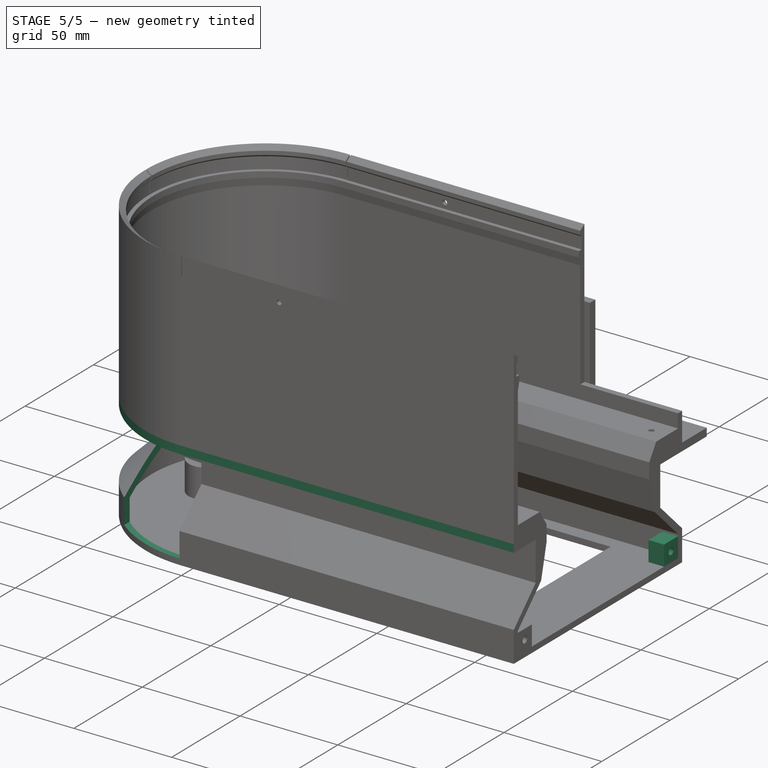
[diagram: stage 5 of 5 — iso view after this stage's code; geometry added in this stage tinted green]
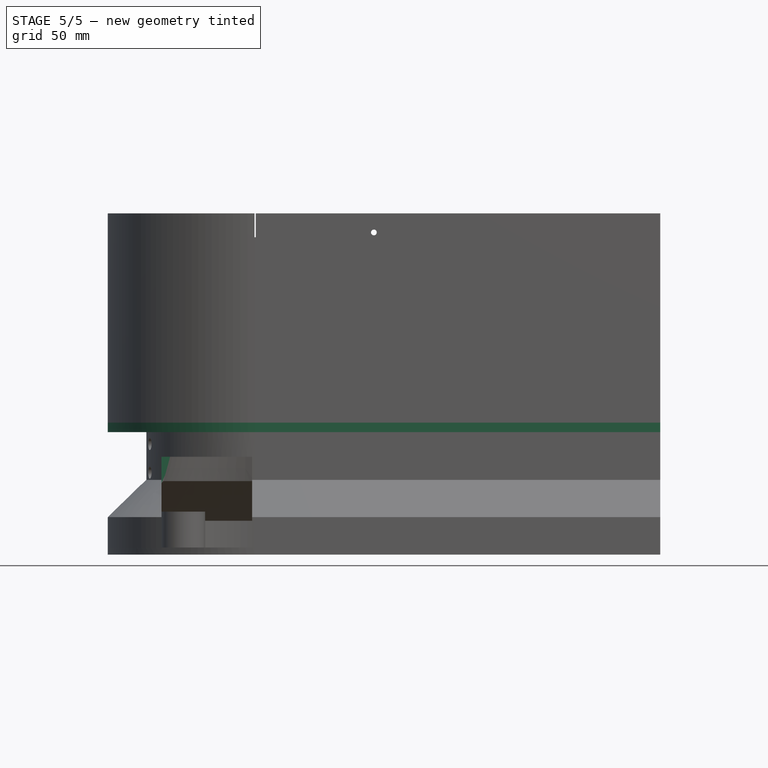
[diagram: stage 5 of 5 — front view after this stage's code; geometry added in this stage tinted green]
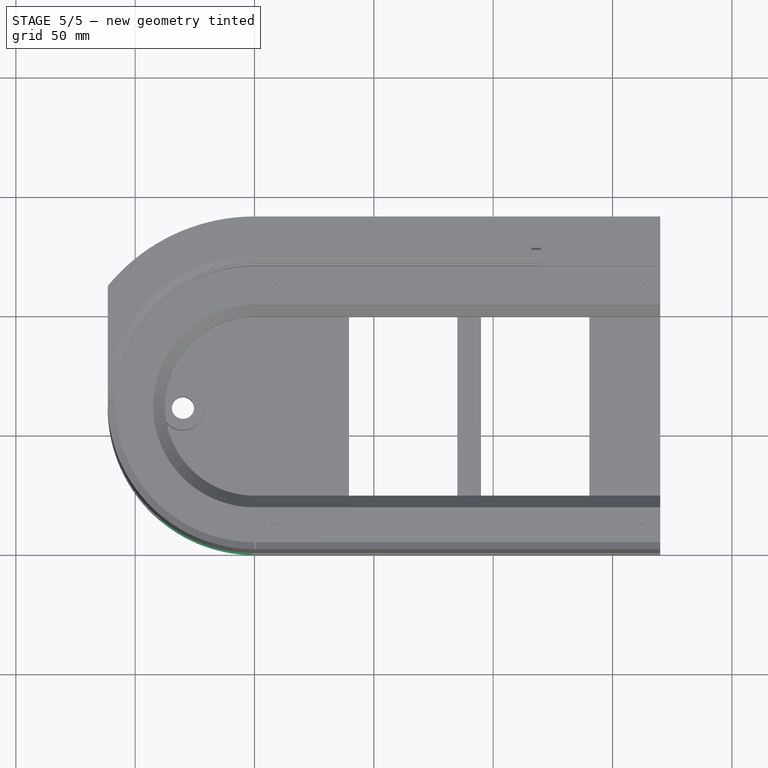
[diagram: stage 5 of 5 — top view after this stage's code; geometry added in this stage tinted green]
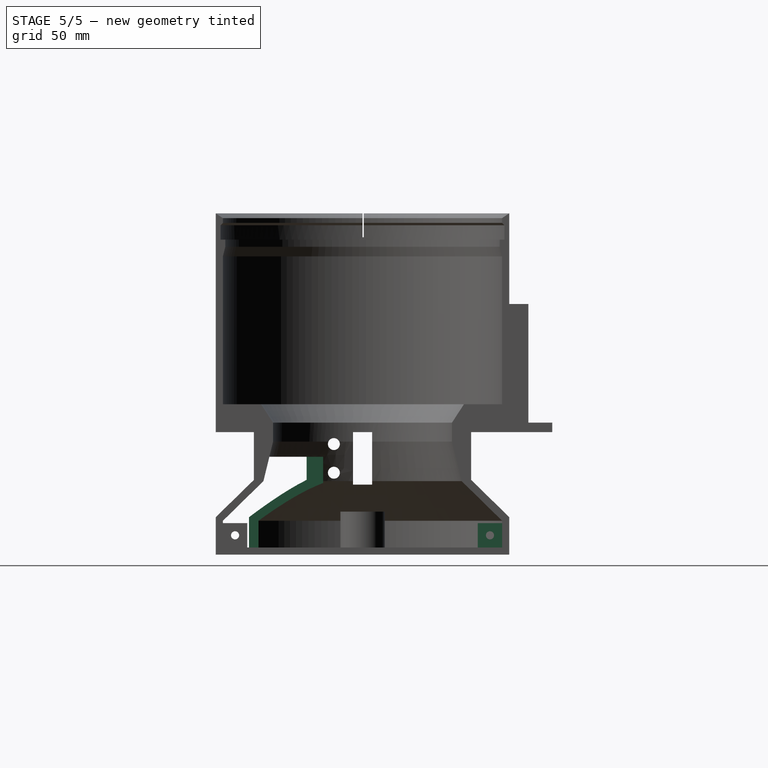
[diagram: stage 5 of 5 — right view after this stage's code; geometry added in this stage tinted green]
FEATURE [PartDesign::Mirrored] Mirrored001
  BaseFeature = -> Pocket009
  MirrorPlane = -> DatumPlane001
  Originals = -> [Pad004,Pocket006,Pocket007]
  Suppressed = false
  TransformMode = 0
FEATURE [Sketcher::SketchObject] Sketch021
  ArcFitTolerance = 1e-06
  AttachmentSupport = -> [XZ_Plane001]
  FullyConstrained = true
  MakeInternals = false
  MapMode = 5
  Placement = pos=(0,0,0) rot=(1,0,0;1.5708rad)
  expr: Constraints[10] = <<Monitor Chassis Parameters>>.GSBaseBodyThickness
  expr: Constraints[11] = 1
  expr: Constraints[8] = <<Monitor Chassis Parameters>>.GSMonitorPowerPortWidth
  expr: Constraints[9] = <<Monitor Chassis Parameters>>.GSMonitorPowerPortWidth
  sketch-geometry (4):
    g0: LineSegment StartX=-1 StartY=41 StartZ=0 EndX=-39 EndY=41 EndZ=0
    g1: LineSegment StartX=-39 StartY=41 StartZ=0 EndX=-39 EndY=3 EndZ=0
    g2: LineSegment StartX=-39 StartY=3 StartZ=0 EndX=-1 EndY=3 EndZ=0
    g3: LineSegment StartX=-1 StartY=3 StartZ=0 EndX=-1 EndY=41 EndZ=0
  constraints (12):
    c: Coincident(g0,g1)
    c: Coincident(g1,g2)
    c: Coincident(g2,g3)
    c: Coincident(g3,g0)
    c: Horizontal(g0)
    c: Horizontal(g2)
    c: Vertical(g1)
    c: Vertical(g3)
    c: DistanceX(g0,g0) = 38
    c: DistanceY(g1,g0) = 38
    c: DistanceY(g-1,g2) = 3
    c: DistanceX(g2,g-1) = 1
FEATURE [App::Part] Part  label="Base Layer - Power Side - Wall"
  Group = -> [Body]
  Origin = -> Origin
  Placement = pos=(0,-59,0) rot=(0,0,1;0rad)
FEATURE [Sketcher::SketchObject] Sketch019
  ArcFitTolerance = 1e-06
  AttachmentSupport = -> [DatumPlane005]
  ExternalGeometry = -> [Mirrored001]
  FullyConstrained = true
  MakeInternals = false
  MapMode = 2
  Placement = pos=(0,0,55.33) rot=(0,0,1;0rad)
  sketch-geometry (4):
    g0: LineSegment StartX=170 StartY=-18 StartZ=0 EndX=170 EndY=0 EndZ=0
    g1: LineSegment StartX=170 StartY=0 StartZ=0 EndX=-70 EndY=0 EndZ=0
    g2: LineSegment StartX=-70 StartY=0 StartZ=0 EndX=-70 EndY=-18 EndZ=0
    g3: LineSegment StartX=-70 StartY=-18 StartZ=0 EndX=170 EndY=-18 EndZ=0
  constraints (11):
    c: Coincident(g0,g1)
    c: Coincident(g1,g2)
    c: Coincident(g2,g3)
    c: Coincident(g3,g0)
    c: Vertical(g0)
    c: Vertical(g2)
    c: Horizontal(g1)
    c: Horizontal(g3)
    c: Coincident(g0,g-3)
    c: PointOnObject(g1,g-1)
    c: DistanceX(g2,g0) = 240
FEATURE [PartDesign::Pocket] Pocket010  label="Back Light Shield Removal Pocket 1"
  BaseFeature = -> Mirrored001
  Direction = (0,0,-1)
  Length = 5
  Length2 = 5
  Profile = -> Sketch019
  ReferenceAxis = -> Sketch019 [N_Axis]
  Suppressed = false
  Type = 0
FEATURE [PartDesign::Plane] DatumPlane005
  AttachmentSupport = -> [Pocket010]
  Length = 309.227
  MapMode = 5
  Placement = pos=(0,0,55.33) rot=(0,0,1;0rad)
  ResizeMode = 0
  Width = 208.114
FEATURE [Sketcher::SketchObject] Sketch020
  ArcFitTolerance = 1e-06
  AttachmentSupport = -> [DatumPlane005]
  ExternalGeometry = -> [DatumLine,Pocket010]
  FullyConstrained = false
  MakeInternals = false
  MapMode = 5
  Placement = pos=(0,0,55.33) rot=(0,0,1;0rad)
  sketch-geometry (5):
    g0: ArcOfCircle CenterX=0 CenterY=61.5 CenterZ=0 NormalX=0 NormalY=0 NormalZ=1 AngleXU=0 Radius=61.5 StartAngle=3.14159 EndAngle=4.71239
    g1: LineSegment StartX=-61.5 StartY=61.5 StartZ=0 EndX=-61.5 EndY=130.448 EndZ=0
    g2: LineSegment StartX=-68.4146 StartY=-1.5e-15 StartZ=0 EndX=0 EndY=-1.5e-15 EndZ=0
    g3: LineSegment StartX=-68.4146 StartY=-1.5e-15 StartZ=0 EndX=-97.1122 EndY=94.6952 EndZ=0
    g4: LineSegment StartX=-97.1122 StartY=94.6952 StartZ=0 EndX=-61.5 EndY=130.448 EndZ=0
  constraints (10):
    c: Coincident(g0,g-3)
    c: Coincident(g1,g0)
    c: Vertical(g1)
    c: PointOnObject(g2,g-2)
    c: Horizontal(g2)
    c: Tangent(g2,g0)
    c: Coincident(g3,g2)
    c: Coincident(g4,g3)
    c: Coincident(g4,g1)
    c: Coincident(g0,g-1)
FEATURE [PartDesign::Pocket] Pocket011  label="Back Light Shield Removal Pocket 2"
  BaseFeature = -> Pocket010
  Direction = (0,0,-1)
  Length = 5
  Length2 = 5
  Profile = -> Sketch020
  ReferenceAxis = -> Sketch020 [N_Axis]
  Suppressed = false
  Type = 0
FEATURE [PartDesign::Pocket] Pocket012  label="Cable Outlet Pocket"
  BaseFeature = -> Pocket011
  Direction = (0,1,-2e-16)
  Length = 45
  Length2 = 5
  Profile = -> Sketch021
  ReferenceAxis = -> Sketch021 [N_Axis]
  Suppressed = false
  Type = 0
FEATURE [PartDesign::Body] Body  label="NOT FOR PRINTING - Base Layer - Wall - Pi Side"
  AllowCompound = false
  Group = -> [Sketch,Pad,Sketch001,Pad001,DatumLine,CopyYZ_Plane,Revolution,DatumPlane,DatumPlane001,Mirrored,Sketch002,Pad002,Sketch004,Pocket,Sketch005,Pocket001,Sketch006,Pocket002,Sketch007,Pocket003,DatumPlane002,Sketch009,Pocket005,DatumPlane003,Sketch010,Pad004,Sketch011,Pocket006,Sketch013,Pocket007,Sketch014,Pad005,Sketch015,Pocket008,Sketch016,Pad006,Sketch017,Pad007,DatumPlane004,Sketch018,Pocket009,+8 more]
  Origin = -> Origin001
  Tip = -> Pocket012
FEATURE [Part::Scale] Scale  label="Base Layer - Wall - Power Side Scale"
  Base = -> Body
  Placement = pos=(-179.6,81.9,0) rot=(0,0,1;0rad)
  Uniform = false
  UniformScale = 1
  XScale = -1
  YScale = 1
  ZScale = 1
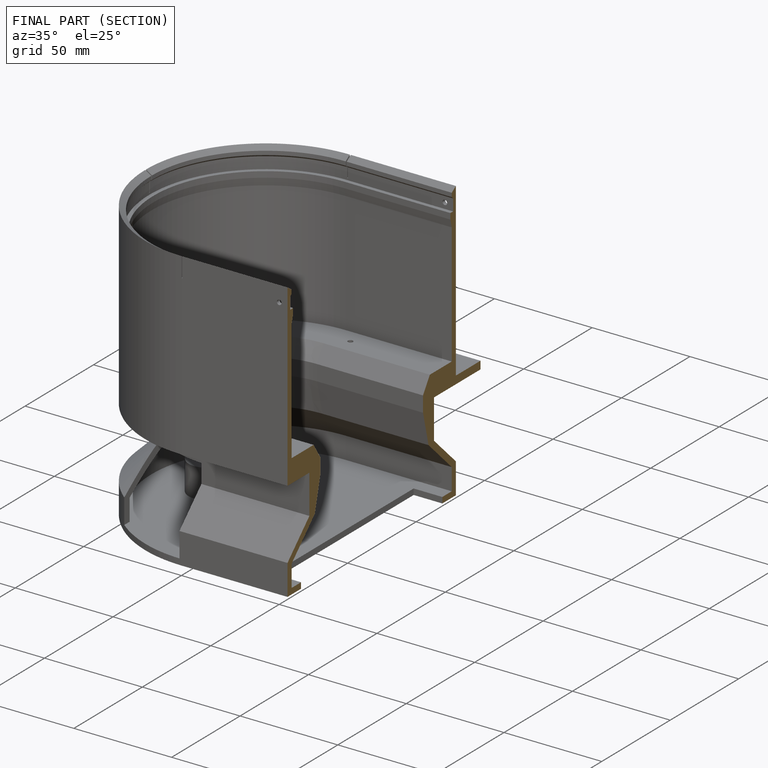
[diagram: finished part — half-section view (interior)]
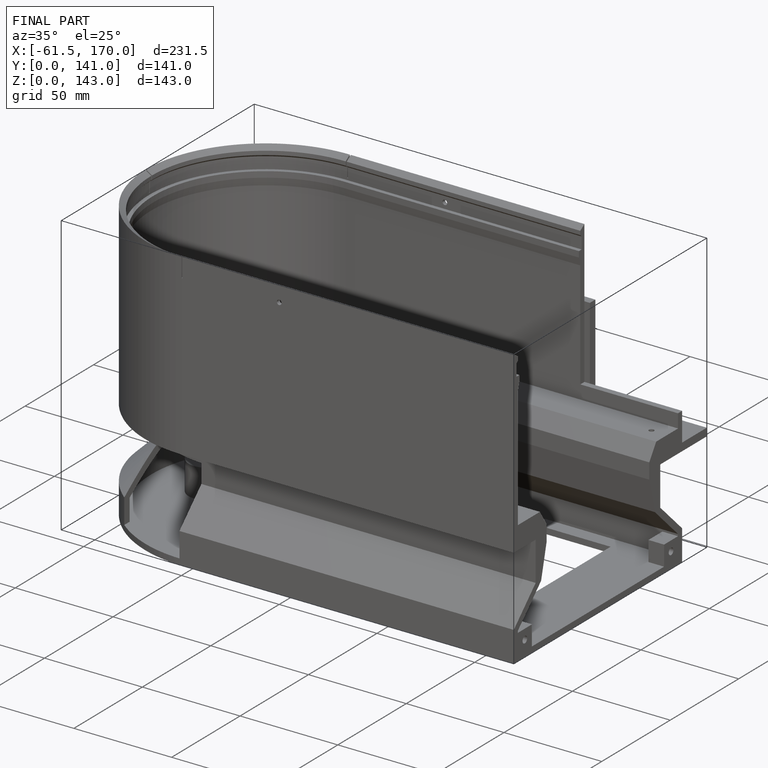
[diagram: finished part — iso view with bounding-box wireframe]
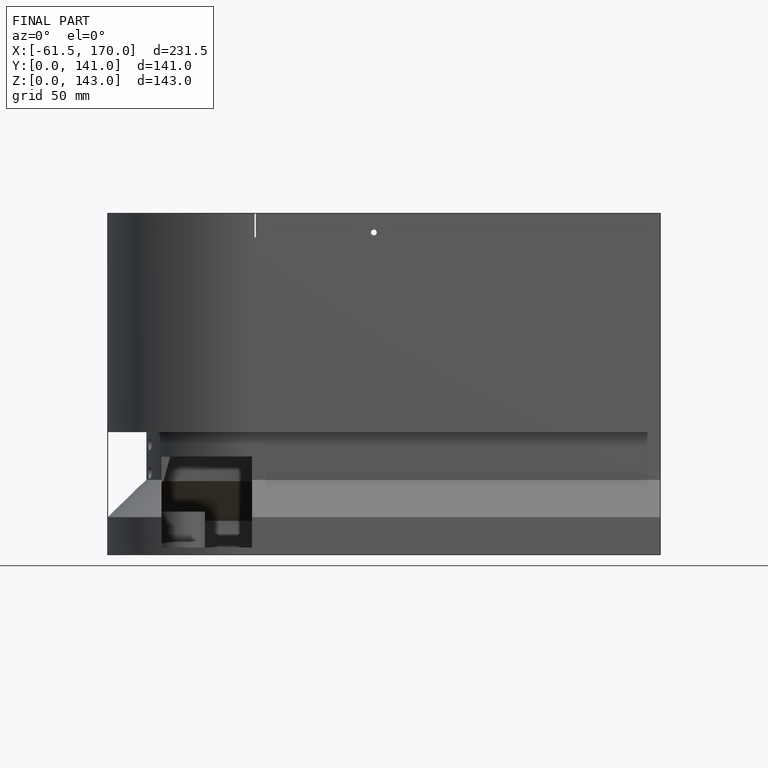
[diagram: finished part — front view with bounding-box wireframe]
